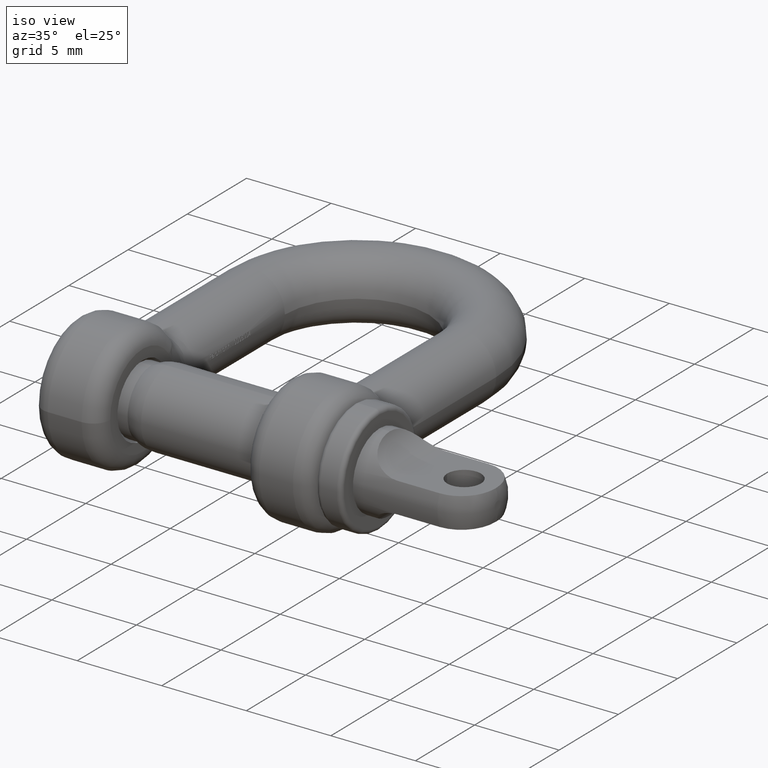
[diagram: clean part render]
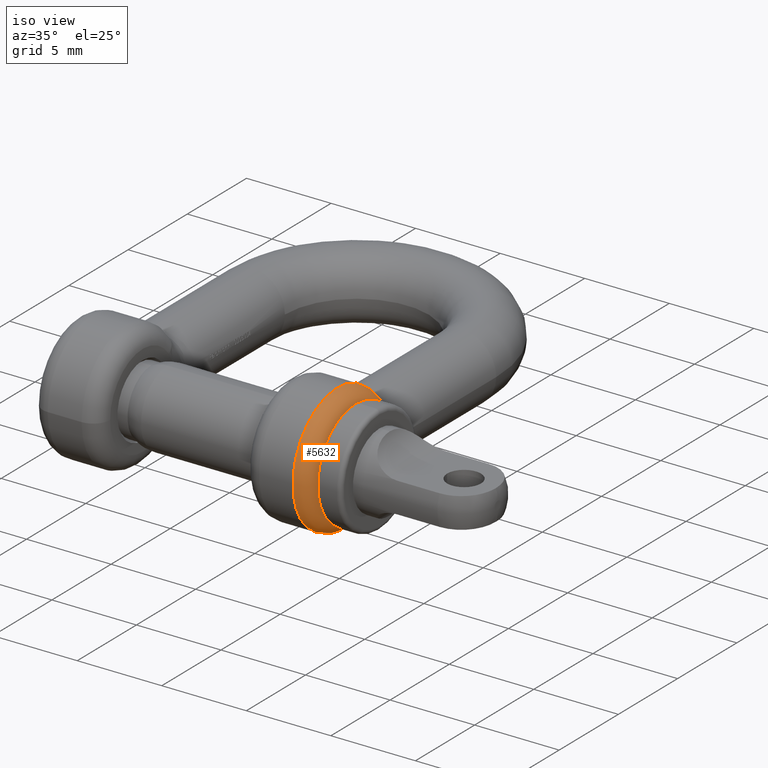
[diagram: same view with one face highlighted and labeled with its STEP entity id]
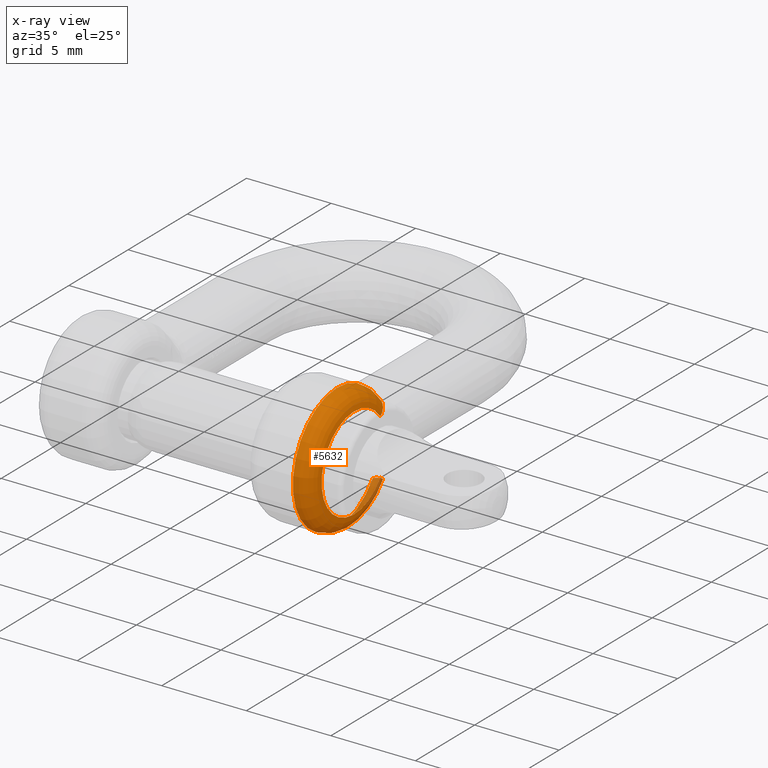
[diagram: x-ray of the same camera — body ghosted, the highlighted face saturated]
A machine part, iso view. The second image highlights one B-rep face of the part: STEP entity #5632.
The next image is the same camera in x-ray: the body ghosted, the highlighted face saturated — about 6% of this face is hidden behind the body in this view.
In plain terms, the highlighted toroidal blend (fillet) surface has major radius 2.75 mm and minor (blend) radius 1 mm.
Its self-contained STEP definition (entity closure, byte-faithful):
#110 = CARTESIAN_POINT ( 'NONE',  ( 8.250000000000003600, 6.057187214211875700, -1.710054141278424300 ) ) ;
#158 = CARTESIAN_POINT ( 'NONE',  ( 7.652010784784953200, 6.742259037986043400, -2.118408387381106400 ) ) ;
#382 = CARTESIAN_POINT ( 'NONE',  ( 7.770849754152578700, 6.691868587935341700, -2.082080597085367300 ) ) ;
#469 = CARTESIAN_POINT ( 'NONE',  ( 7.855603575412789800, 6.644329697445274800, -2.052834521497359800 ) ) ;
#550 = CARTESIAN_POINT ( 'NONE',  ( 7.652010784785119300, 6.742259037986116300, 2.118408387381018000 ) ) ;
#628 = EDGE_LOOP ( 'NONE', ( #1223, #7355, #3406, #8003, #4821, #12192 ) ) ;
#729 = CARTESIAN_POINT ( 'NONE',  ( 8.250000000000003600, 5.959312009831727200, 1.637510440642530700 ) ) ;
#1223 = ORIENTED_EDGE ( 'NONE', *, *, #11237, .F. ) ;
#1447 = CARTESIAN_POINT ( 'NONE',  ( 7.682341571525747700, 6.731380339813487300, 2.109614442663705300 ) ) ;
#1596 = DIRECTION ( 'NONE',  ( 1.000000000000000000, 1.652117596168387800E-016, 0.0000000000000000000 ) ) ;
#1928 = TOROIDAL_SURFACE ( 'NONE', #3825, 2.750000000000000000, 1.000000000000000000 ) ;
#2216 = CARTESIAN_POINT ( 'NONE',  ( 7.250000000000002700, 3.750000000000000900, 0.0000000000000000000 ) ) ;
#2228 = CARTESIAN_POINT ( 'NONE',  ( 7.250000000000002700, 6.762698195225082600, -2.232968782694360500 ) ) ;
#2305 = EDGE_CURVE ( 'NONE', #10828, #3798, #6033, .T. ) ;
#2431 = CARTESIAN_POINT ( 'NONE',  ( 8.052972773142718300, 6.479265228146796400, -1.962062500684457200 ) ) ;
#2505 = AXIS2_PLACEMENT_3D ( 'NONE', #5263, #12659, #12712 ) ;
#2552 = CARTESIAN_POINT ( 'NONE',  ( 7.956828541821291600, 6.564100425299642400, 2.008568948257153600 ) ) ;
#2597 = CARTESIAN_POINT ( 'NONE',  ( 7.496850974718232600, 6.779464937399717800, 2.160669126732186000 ) ) ;
#2644 = CARTESIAN_POINT ( 'NONE',  ( 7.559804430739766300, 6.769170956395512900, -2.144198428689747100 ) ) ;
#3406 = ORIENTED_EDGE ( 'NONE', *, *, #8775, .F. ) ;
#3653 = CARTESIAN_POINT ( 'NONE',  ( 7.956828541821291600, 6.564100425299622900, -2.008568948257180700 ) ) ;
#3704 = B_SPLINE_CURVE_WITH_KNOTS ( 'NONE', 3,
 ( #3653, #11019, #469, #382, #6489, #8918, #158, #2644, #12068, #5780, #7868, #7781 ),
 .UNSPECIFIED., .F., .F.,
 ( 4, 2, 2, 2, 2, 4 ),
 ( 0.0000000000000000000, 0.2500000000000000000, 0.3750000000000000000, 0.5000000000000000000, 0.7500000000000000000, 1.000000000000000000 ),
 .UNSPECIFIED. ) ;
#3798 = VERTEX_POINT ( 'NONE', #7561 ) ;
#3809 = EDGE_CURVE ( 'NONE', #7120, #13364, #5512, .T. ) ;
#3825 = AXIS2_PLACEMENT_3D ( 'NONE', #13222, #1596, #9987 ) ;
#3868 = CARTESIAN_POINT ( 'NONE',  ( 8.052972773142721900, 6.479265228146807900, 1.962062500684438100 ) ) ;
#4256 = VERTEX_POINT ( 'NONE', #13441 ) ;
#4370 = CARTESIAN_POINT ( 'NONE',  ( 8.250000000000003600, 5.959312009831727200, -1.637510440642530700 ) ) ;
#4680 = CARTESIAN_POINT ( 'NONE',  ( 7.741761056209514700, 6.706185114788125300, 2.091450547515851400 ) ) ;
#4821 = ORIENTED_EDGE ( 'NONE', *, *, #2305, .F. ) ;
#4898 = CARTESIAN_POINT ( 'NONE',  ( 8.250000000000003600, 5.959312009831727200, -1.637510440642530700 ) ) ;
#5231 = DIRECTION ( 'NONE',  ( -2.312964634635743000E-016, 1.000000000000000000, 0.0000000000000000000 ) ) ;
#5263 = CARTESIAN_POINT ( 'NONE',  ( 8.250000000000003600, 3.750000000000000900, 0.0000000000000000000 ) ) ;
#5344 = AXIS2_PLACEMENT_3D ( 'NONE', #2216, #12630, #5231 ) ;
#5512 = B_SPLINE_CURVE_WITH_KNOTS ( 'NONE', 3,
 ( #4370, #110, #8670, #6632, #2431, #7651 ),
 .UNSPECIFIED., .F., .F.,
 ( 4, 2, 4 ),
 ( 0.0000000000000000000, 0.5000000000000000000, 1.000000000000000000 ),
 .UNSPECIFIED. ) ;
#5632 = ADVANCED_FACE ( 'NONE', ( #6072 ), #1928, .T. ) ;
#5780 = CARTESIAN_POINT ( 'NONE',  ( 7.371814136685358700, 6.783655408376215900, -2.195034073057919400 ) ) ;
#5999 = CARTESIAN_POINT ( 'NONE',  ( 8.227091863451933700, 6.165116386075690800, 1.780438733871312400 ) ) ;
#6033 = B_SPLINE_CURVE_WITH_KNOTS ( 'NONE', 3,
 ( #6715, #13202, #6845, #2597, #6891, #550, #1447, #4680, #7827, #11021, #10926, #2552 ),
 .UNSPECIFIED., .F., .F.,
 ( 4, 2, 2, 2, 2, 4 ),
 ( 0.0000000000000000000, 0.2500000000000000000, 0.5000000000000000000, 0.6250000000000000000, 0.7500000000000000000, 1.000000000000000000 ),
 .UNSPECIFIED. ) ;
#6072 = FACE_OUTER_BOUND ( 'NONE', #628, .T. ) ;
#6489 = CARTESIAN_POINT ( 'NONE',  ( 7.741761056209420600, 6.706185114788069300, -2.091450547515915300 ) ) ;
#6632 = CARTESIAN_POINT ( 'NONE',  ( 8.128631585196069800, 6.376339940295647300, -1.906612358499214100 ) ) ;
#6715 = CARTESIAN_POINT ( 'NONE',  ( 7.250000000000002700, 6.762698195225082600, 2.232968782694360500 ) ) ;
#6771 = EDGE_CURVE ( 'NONE', #3798, #4256, #10153, .T. ) ;
#6845 = CARTESIAN_POINT ( 'NONE',  ( 7.371814136685737900, 6.783655408376316300, 2.195034073057784900 ) ) ;
#6891 = CARTESIAN_POINT ( 'NONE',  ( 7.559804430740011400, 6.769170956395600000, 2.144198428689635200 ) ) ;
#7120 = VERTEX_POINT ( 'NONE', #4898 ) ;
#7355 = ORIENTED_EDGE ( 'NONE', *, *, #3809, .F. ) ;
#7561 = CARTESIAN_POINT ( 'NONE',  ( 7.956828541821291600, 6.564100425299642400, 2.008568948257153600 ) ) ;
#7651 = CARTESIAN_POINT ( 'NONE',  ( 7.956828541821291600, 6.564100425299622900, -2.008568948257180700 ) ) ;
#7781 = CARTESIAN_POINT ( 'NONE',  ( 7.250000000000002700, 6.762698195225082600, -2.232968782694360500 ) ) ;
#7827 = CARTESIAN_POINT ( 'NONE',  ( 7.770849754152653300, 6.691868587935392300, 2.082080597085310500 ) ) ;
#7868 = CARTESIAN_POINT ( 'NONE',  ( 7.309730754674614400, 6.777551898348697500, -2.212928321340966100 ) ) ;
#8003 = ORIENTED_EDGE ( 'NONE', *, *, #6771, .F. ) ;
#8079 = CARTESIAN_POINT ( 'NONE',  ( 7.956828541821291600, 6.564100425299642400, 2.008568948257153600 ) ) ;
#8670 = CARTESIAN_POINT ( 'NONE',  ( 8.227091863451926600, 6.165116386075697900, -1.780438733871323500 ) ) ;
#8775 = EDGE_CURVE ( 'NONE', #4256, #7120, #9379, .T. ) ;
#8918 = CARTESIAN_POINT ( 'NONE',  ( 7.682341571525604700, 6.731380339813418000, -2.109614442663785300 ) ) ;
#9379 = CIRCLE ( 'NONE', #2505, 2.750000000000000000 ) ;
#9516 = VERTEX_POINT ( 'NONE', #2228 ) ;
#9892 = CARTESIAN_POINT ( 'NONE',  ( 7.250000000000002700, 6.762698195225082600, 2.232968782694360500 ) ) ;
#9987 = DIRECTION ( 'NONE',  ( -1.652117596168387800E-016, 1.000000000000000000, 0.0000000000000000000 ) ) ;
#10153 = B_SPLINE_CURVE_WITH_KNOTS ( 'NONE', 3,
 ( #8079, #3868, #11238, #5999, #11371, #729 ),
 .UNSPECIFIED., .F., .F.,
 ( 4, 2, 4 ),
 ( 0.0000000000000000000, 0.5000000000000000000, 1.000000000000000000 ),
 .UNSPECIFIED. ) ;
#10339 = CIRCLE ( 'NONE', #5344, 3.750000000000000000 ) ;
#10828 = VERTEX_POINT ( 'NONE', #9892 ) ;
#10926 = CARTESIAN_POINT ( 'NONE',  ( 7.908756426160578300, 6.606518023876061500, 2.031822172043511500 ) ) ;
#11019 = CARTESIAN_POINT ( 'NONE',  ( 7.908756426160576500, 6.606518023876036600, -2.031822172043538100 ) ) ;
#11021 = CARTESIAN_POINT ( 'NONE',  ( 7.855603575412810200, 6.644329697445308500, 2.052834521497322500 ) ) ;
#11237 = EDGE_CURVE ( 'NONE', #13364, #9516, #3704, .T. ) ;
#11238 = CARTESIAN_POINT ( 'NONE',  ( 8.128631585196073300, 6.376339940295647300, 1.906612358499195000 ) ) ;
#11371 = CARTESIAN_POINT ( 'NONE',  ( 8.250000000000003600, 6.057187214211867700, 1.710054141278416900 ) ) ;
#11718 = EDGE_CURVE ( 'NONE', #9516, #10828, #10339, .T. ) ;
#12068 = CARTESIAN_POINT ( 'NONE',  ( 7.496850974717934200, 6.779464937399621900, -2.160669126732309900 ) ) ;
#12192 = ORIENTED_EDGE ( 'NONE', *, *, #11718, .F. ) ;
#12630 = DIRECTION ( 'NONE',  ( -1.000000000000000000, -1.652117596168387800E-016, -0.0000000000000000000 ) ) ;
#12659 = DIRECTION ( 'NONE',  ( 1.000000000000000000, 1.652117596168387800E-016, 0.0000000000000000000 ) ) ;
#12712 = DIRECTION ( 'NONE',  ( 0.0000000000000000000, 1.000000000000000000, 0.0000000000000000000 ) ) ;
#13032 = CARTESIAN_POINT ( 'NONE',  ( 7.956828541821291600, 6.564100425299622900, -2.008568948257180700 ) ) ;
#13202 = CARTESIAN_POINT ( 'NONE',  ( 7.309730754675027400, 6.777551898348794300, 2.212928321340833700 ) ) ;
#13222 = CARTESIAN_POINT ( 'NONE',  ( 7.250000000000003600, 3.750000000000000900, 0.0000000000000000000 ) ) ;
#13364 = VERTEX_POINT ( 'NONE', #13032 ) ;
#13441 = CARTESIAN_POINT ( 'NONE',  ( 8.250000000000003600, 5.959312009831727200, 1.637510440642530700 ) ) ;